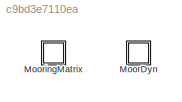
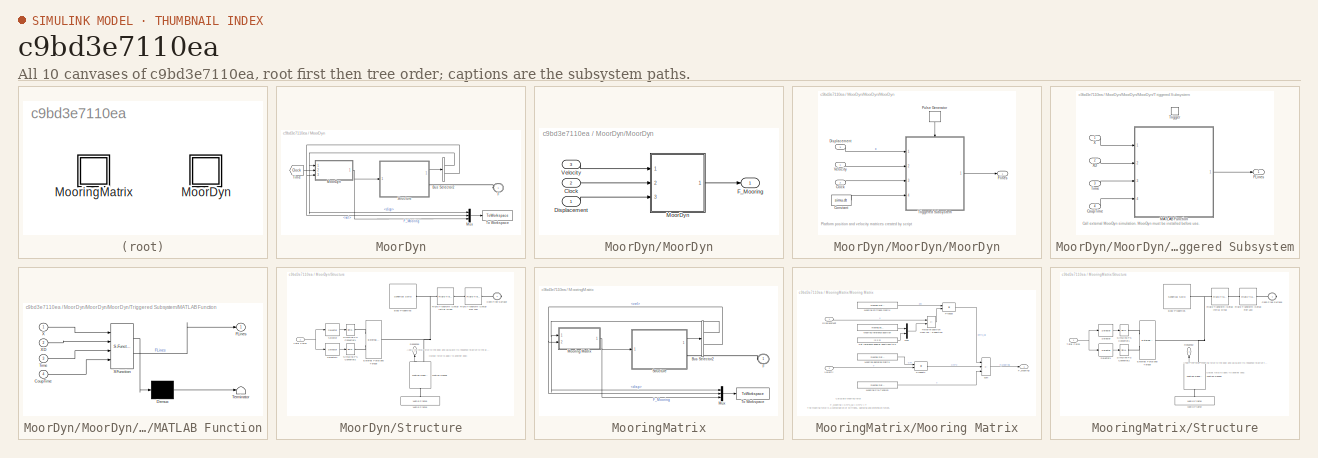
[diagram: thumbnail index - all 10 canvases of the model, root first then tree order]
MODEL slx_c9bd3e7110ea
KIND library
CONFIG AbsTol = auto
CONFIG EnableMultiTasking = off
CONFIG FixedStep = auto
CONFIG MaxStep = auto
CONFIG MinStep = auto
CONFIG RelTol = 1e-3
CONFIG SampleTimeConstraint = Unconstrained
CONFIG SolverName = VariableStepAuto
CONFIG StartTime = 0.0
CONFIG StopTime = 10.0
BLOCK [SubSystem] MoorDyn
  AttributesFormatString = %<mooring>
  Ports = [0, 0, 0, 0, 0, 1]
BLOCK [BusSelector] MoorDyn/Bus Selector2
  OutputSignals = disp,vel
  Ports = [1, 2]
BLOCK [PMIOPort] MoorDyn/F
  Side = Left
BLOCK [SubSystem] MoorDyn/MoorDyn
  Ports = [3, 1]
  VariantControl = sv_moorDyn
BLOCK [Inport] MoorDyn/MoorDyn/Clock
  Port = 2
BLOCK [Inport] MoorDyn/MoorDyn/Displacement
BLOCK [Outport] MoorDyn/MoorDyn/F_Mooring
BLOCK [SubSystem] MoorDyn/MoorDyn/MoorDyn
  CloseFcn = if libisloaded('Lines')\n    calllib('Lines','LinesClose');\n    unloadlibrary Lines;\nend
  InitFcn = % Initialize MoorDyn Lib (Windows:dll or OSX:dylib)\ndisp('---------------Starting MoorDyn-------------')\nif ismac\n    loadlibrary('Lines.dylib','MoorDyn.h');\nelseif ispc\n%-----------------\nif libisloaded('Lines')\n    calllib('Lines','LinesClose');\n    unloadlibrary Lines;\nend\n\nloadlibrary('Lines.dll','MoorDyn.h');\n\n%---------------\nelseif isunix\n  loadlibrary('Lines.so','MoorDyn.h');\nelse\n  disp('...<+365ch>
  Ports = [3, 1]
  StopFcn = if libisloaded('Lines')\n    calllib('Lines','LinesClose');\n    unloadlibrary Lines;\nend
BLOCK [Inport] MoorDyn/MoorDyn/MoorDyn/Clock
  Port = 2
BLOCK [Constant] MoorDyn/MoorDyn/MoorDyn/Constant
  Value = simu.dt
BLOCK [Inport] MoorDyn/MoorDyn/MoorDyn/Displacement
  Port = 3
BLOCK [Outport] MoorDyn/MoorDyn/MoorDyn/Flines
BLOCK [DiscretePulseGenerator] MoorDyn/MoorDyn/MoorDyn/Pulse Generator
  Amplitude = simu.endTime
  NameLocation = right
  Period = 2*simu.dt
  Ports = [0, 1]
  PulseType = Time based
  PulseWidth = 50
BLOCK [SubSystem] MoorDyn/MoorDyn/MoorDyn/Triggered Subsystem
  Ports = [4, 1, 0, 1]
  TreatAsAtomicUnit = on
BLOCK [Inport] MoorDyn/MoorDyn/MoorDyn/Triggered Subsystem/CoupTime
  Port = 4
BLOCK [Outport] MoorDyn/MoorDyn/MoorDyn/Triggered Subsystem/FLines
  PortDimensions = 6
  VarSizeSig = No
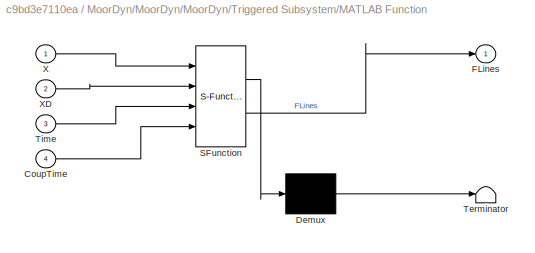
BLOCK [SubSystem] MoorDyn/MoorDyn/MoorDyn/Triggered Subsystem/MATLAB Function
  ErrorFcn = Stateflow.Translate.translate
  PermitHierarchicalResolution = ExplicitOnly
  Ports = [4, 1]
  SFBlockType = MATLAB Function
  TreatAsAtomicUnit = on
BLOCK [Demux] MoorDyn/MoorDyn/MoorDyn/Triggered Subsystem/MATLAB Function/ Demux 
  Outputs = 1
  Ports = [1, 1]
BLOCK [S-Function] MoorDyn/MoorDyn/MoorDyn/Triggered Subsystem/MATLAB Function/ SFunction 
  EnableBusSupport = off
  FunctionName = sf_sfun
  PortCounts = [4 2]
  Ports = [4, 2]
  SFcnIsStateOwnerBlock = off
  SFunctionDeploymentMode = off
  Tag = Stateflow S-Function 7
BLOCK [Terminator] MoorDyn/MoorDyn/MoorDyn/Triggered Subsystem/MATLAB Function/ Terminator 
BLOCK [Inport] MoorDyn/MoorDyn/MoorDyn/Triggered Subsystem/MATLAB Function/CoupTime
  Port = 4
BLOCK [Outport] MoorDyn/MoorDyn/MoorDyn/Triggered Subsystem/MATLAB Function/FLines
BLOCK [Inport] MoorDyn/MoorDyn/MoorDyn/Triggered Subsystem/MATLAB Function/Time
  Port = 3
BLOCK [Inport] MoorDyn/MoorDyn/MoorDyn/Triggered Subsystem/MATLAB Function/X
BLOCK [Inport] MoorDyn/MoorDyn/MoorDyn/Triggered Subsystem/MATLAB Function/XD
  Port = 2
BLOCK [Inport] MoorDyn/MoorDyn/MoorDyn/Triggered Subsystem/Time
  Port = 3
BLOCK [TriggerPort] MoorDyn/MoorDyn/MoorDyn/Triggered Subsystem/Trigger
  Ports = []
  StatesWhenEnabling = held
  TriggerType = either
  VariantControl = (inherit)
BLOCK [Inport] MoorDyn/MoorDyn/MoorDyn/Triggered Subsystem/X
BLOCK [Inport] MoorDyn/MoorDyn/MoorDyn/Triggered Subsystem/XD
  Port = 2
BLOCK [Inport] MoorDyn/MoorDyn/MoorDyn/Velocity
BLOCK [Inport] MoorDyn/MoorDyn/Velocity
  Port = 3
BLOCK [Mux] MoorDyn/Mux
  DisplayOption = bar
  Inputs = 3
  Ports = [3, 1]
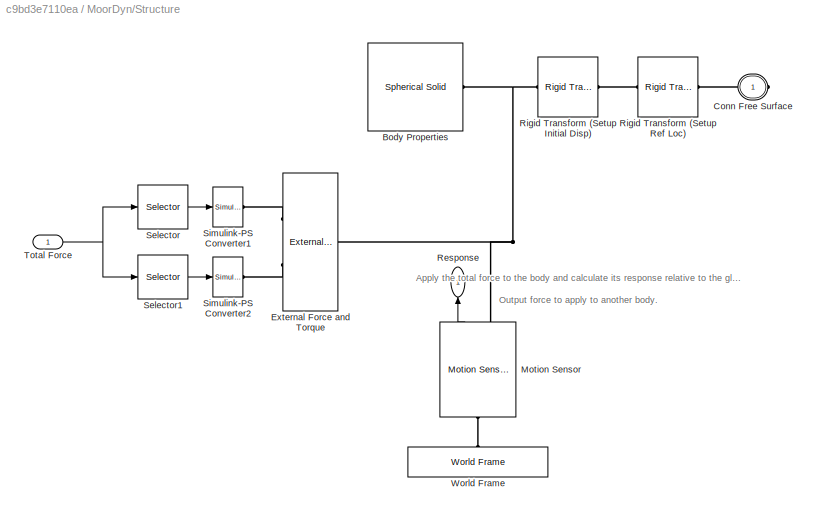
BLOCK [SubSystem] MoorDyn/Structure
  Ports = [1, 1, 0, 0, 0, 0, 1]
BLOCK [Reference] MoorDyn/Structure/Body Properties  REF=sm_lib/Body Elements/Spherical Solid
  Ports = [0, 0, 0, 0, 0, 0, 1]
  SourceBlock = sm_lib/Body Elements/Spherical Solid
  SourceType = Spherical Solid
BLOCK [PMIOPort] MoorDyn/Structure/Conn Free Surface
  Side = Right
BLOCK [Reference] MoorDyn/Structure/External Force and Torque  REF=sm_lib/Forces and
Torques/External Force
and Torque
  Ports = [0, 0, 0, 0, 0, 2, 1]
  SourceBlock = sm_lib/Forces and\nTorques/External Force\nand Torque
  SourceType = External Force\nand Torque
BLOCK [Reference] MoorDyn/Structure/Motion Sensor  REF=WECSim_Lib_Body_Elements/Rigid Body/Hydrodynamic Body/Structure/Motion Sensor
  NameLocation = left
  Ports = [0, 1, 0, 0, 0, 1, 1]
  SourceBlock = WECSim_Lib_Body_Elements/Rigid Body/Hydrodynamic Body/Structure/Motion Sensor
  SourceType = SubSystem
BLOCK [Outport] MoorDyn/Structure/Response
  NameLocation = left
BLOCK [Reference] MoorDyn/Structure/Rigid Transform (Setup Initial Disp)  REF=sm_lib/Frames and
Transforms/Rigid
Transform
  Ports = [0, 0, 0, 0, 0, 1, 1]
  SourceBlock = sm_lib/Frames and\nTransforms/Rigid\nTransform
  SourceType = Rigid\nTransform
BLOCK [Reference] MoorDyn/Structure/Rigid Transform (Setup Ref Loc)  REF=sm_lib/Frames and
Transforms/Rigid
Transform
  Ports = [0, 0, 0, 0, 0, 1, 1]
  SourceBlock = sm_lib/Frames and\nTransforms/Rigid\nTransform
  SourceType = Rigid\nTransform
BLOCK [Selector] MoorDyn/Structure/Selector
  IndexOptions = Index vector (dialog)
  Indices = [1:3]
  InputPortWidth = 6
  OutputSizes = 1
  Ports = [1, 1]
BLOCK [Selector] MoorDyn/Structure/Selector1
  IndexOptions = Index vector (dialog)
  Indices = [4:6]
  InputPortWidth = 6
  OutputSizes = 1
  Ports = [1, 1]
BLOCK [Reference] MoorDyn/Structure/Simulink-PS Converter1  REF=nesl_utility/Simulink-PS
Converter
  Ports = [1, 0, 0, 0, 0, 0, 1]
  SourceBlock = nesl_utility/Simulink-PS\nConverter
  SourceType = Simulink-PS\nConverter
BLOCK [Reference] MoorDyn/Structure/Simulink-PS Converter2  REF=nesl_utility/Simulink-PS
Converter
  Ports = [1, 0, 0, 0, 0, 0, 1]
  SourceBlock = nesl_utility/Simulink-PS\nConverter
  SourceType = Simulink-PS\nConverter
BLOCK [Inport] MoorDyn/Structure/Total Force
BLOCK [Reference] MoorDyn/Structure/World Frame  REF=sm_lib/Frames and
Transforms/World Frame
  NameLocation = right
  Ports = [0, 0, 0, 0, 0, 0, 1]
  SourceBlock = sm_lib/Frames and\nTransforms/World Frame
  SourceType = World Frame
BLOCK [From] MoorDyn/Time
  GotoTag = Clock
  TagVisibility = global
BLOCK [ToWorkspace] MoorDyn/To Workspace
  MaxDataPoints = inf
  Ports = [1]
  SampleTime = simu.dtOut
  SaveFormat = Structure With Time
  VariableName = mooring1_out
BLOCK [SubSystem] MooringMatrix
  AttributesFormatString = %<mooring>
  Ports = [0, 0, 0, 0, 0, 1]
BLOCK [BusSelector] MooringMatrix/Bus Selector2
  OutputSignals = disp,vel
  Ports = [1, 2]
BLOCK [PMIOPort] MooringMatrix/F
  Side = Left
BLOCK [SubSystem] MooringMatrix/Mooring Matrix
  Ports = [2, 1]
  VariantControl = sv_mooringMatrix
BLOCK [Inport] MooringMatrix/Mooring Matrix/Displacement
BLOCK [Outport] MooringMatrix/Mooring Matrix/F_Mooring
BLOCK [Constant] MooringMatrix/Mooring Matrix/Mooring Pre-Tension
  Value = mooring.matrix.preTension
BLOCK [Constant] MooringMatrix/Mooring Matrix/Mooring damping matrix
  Value = mooring.matrix.damping
BLOCK [Constant] MooringMatrix/Mooring Matrix/Mooring reference position
  Value = mooring.location
BLOCK [Constant] MooringMatrix/Mooring Matrix/Mooring stiffness matrix
  Value = mooring.matrix.stiffness
BLOCK [Mux] MooringMatrix/Mooring Matrix/Mux
  DisplayOption = bar
  Inputs = 2
  Ports = [2, 1]
BLOCK [Product] MooringMatrix/Mooring Matrix/Product
  Multiplication = Matrix(*)
  Ports = [2, 1]
BLOCK [Product] MooringMatrix/Mooring Matrix/Product1
  Multiplication = Matrix(*)
  Ports = [2, 1]
BLOCK [Sum] MooringMatrix/Mooring Matrix/Relative position from reference position
  IconShape = rectangular
  Inputs = +-
  Ports = [2, 1]
BLOCK [Constant] MooringMatrix/Mooring Matrix/Set reference angular positions to 0
  Value = [0 0 0]
BLOCK [Inport] MooringMatrix/Mooring Matrix/Velocity
  Port = 2
BLOCK [Sum] MooringMatrix/Mooring Matrix/sum
  IconShape = rectangular
  Inputs = --+
  Ports = [3, 1]
BLOCK [Mux] MooringMatrix/Mux
  DisplayOption = bar
  Inputs = 3
  Ports = [3, 1]
BLOCK [SubSystem] MooringMatrix/Structure
  Ports = [1, 1, 0, 0, 0, 0, 1]
BLOCK [Reference] MooringMatrix/Structure/Body Properties  REF=sm_lib/Body Elements/Spherical Solid
  Ports = [0, 0, 0, 0, 0, 0, 1]
  SourceBlock = sm_lib/Body Elements/Spherical Solid
  SourceType = Spherical Solid
BLOCK [PMIOPort] MooringMatrix/Structure/Conn Free Surface
  Side = Right
BLOCK [Reference] MooringMatrix/Structure/External Force and Torque  REF=sm_lib/Forces and
Torques/External Force
and Torque
  Ports = [0, 0, 0, 0, 0, 2, 1]
  SourceBlock = sm_lib/Forces and\nTorques/External Force\nand Torque
  SourceType = External Force\nand Torque
BLOCK [Reference] MooringMatrix/Structure/Motion Sensor  REF=WECSim_Lib_Body_Elements/Rigid Body/Hydrodynamic Body/Structure/Motion Sensor
  NameLocation = left
  Ports = [0, 1, 0, 0, 0, 1, 1]
  SourceBlock = WECSim_Lib_Body_Elements/Rigid Body/Hydrodynamic Body/Structure/Motion Sensor
  SourceType = SubSystem
BLOCK [Outport] MooringMatrix/Structure/Response
  NameLocation = left
BLOCK [Reference] MooringMatrix/Structure/Rigid Transform (Setup Initial Disp)  REF=sm_lib/Frames and
Transforms/Rigid
Transform
  Ports = [0, 0, 0, 0, 0, 1, 1]
  SourceBlock = sm_lib/Frames and\nTransforms/Rigid\nTransform
  SourceType = Rigid\nTransform
BLOCK [Reference] MooringMatrix/Structure/Rigid Transform (Setup Ref Loc)  REF=sm_lib/Frames and
Transforms/Rigid
Transform
  Ports = [0, 0, 0, 0, 0, 1, 1]
  SourceBlock = sm_lib/Frames and\nTransforms/Rigid\nTransform
  SourceType = Rigid\nTransform
BLOCK [Selector] MooringMatrix/Structure/Selector
  IndexOptions = Index vector (dialog)
  Indices = [1:3]
  InputPortWidth = 6
  OutputSizes = 1
  Ports = [1, 1]
BLOCK [Selector] MooringMatrix/Structure/Selector1
  IndexOptions = Index vector (dialog)
  Indices = [4:6]
  InputPortWidth = 6
  OutputSizes = 1
  Ports = [1, 1]
BLOCK [Reference] MooringMatrix/Structure/Simulink-PS Converter1  REF=nesl_utility/Simulink-PS
Converter
  Ports = [1, 0, 0, 0, 0, 0, 1]
  SourceBlock = nesl_utility/Simulink-PS\nConverter
  SourceType = Simulink-PS\nConverter
BLOCK [Reference] MooringMatrix/Structure/Simulink-PS Converter2  REF=nesl_utility/Simulink-PS
Converter
  Ports = [1, 0, 0, 0, 0, 0, 1]
  SourceBlock = nesl_utility/Simulink-PS\nConverter
  SourceType = Simulink-PS\nConverter
BLOCK [Inport] MooringMatrix/Structure/Total Force
BLOCK [Reference] MooringMatrix/Structure/World Frame  REF=sm_lib/Frames and
Transforms/World Frame
  NameLocation = right
  Ports = [0, 0, 0, 0, 0, 0, 1]
  SourceBlock = sm_lib/Frames and\nTransforms/World Frame
  SourceType = World Frame
BLOCK [ToWorkspace] MooringMatrix/To Workspace
  MaxDataPoints = inf
  Ports = [1]
  SampleTime = simu.dtOut
  SaveFormat = Structure With Time
  VariableName = mooring1_out
ANNOTATION MoorDyn/MoorDyn/MoorDyn: Platform position and velocity matrices created by script
ANNOTATION MoorDyn/MoorDyn/MoorDyn/Triggered Subsystem: Call external MoorDyn simulation. MoorDyn must be installed before use.
ANNOTATION MoorDyn/Structure: Apply the total force to the body and calculate its response relative to the global reference frame. Output force to apply to another body.
ANNOTATION MooringMatrix/Mooring Matrix: Calculate Mooring force F_Mooring = Km*x_cg + Cm*v + T The mooring force is a combination of stiffness, damping and pretension forces.
ANNOTATION MooringMatrix/Structure: Apply the total mooring force to the body and calculate its response relative to the global reference frame. Output force to apply to another body.
CHART MoorDyn/MoorDyn/MoorDyn/Triggered
Subsystem/MATLAB Function states=1 transitions=1
  STATE_LABEL 'eML_blk_kernel()'
  STATE_LABEL 'SCRIPT:\nfunction FLines  = MoorDyn_matlab_FCN(X,XD,Time,CoupTime)\n\nFLines = zeros(1,6);\nFLines  = MoorDyn_matlab_FCN(X,XD,Time,CoupTime);\n\nend'
CHART  states=0 transitions=0
